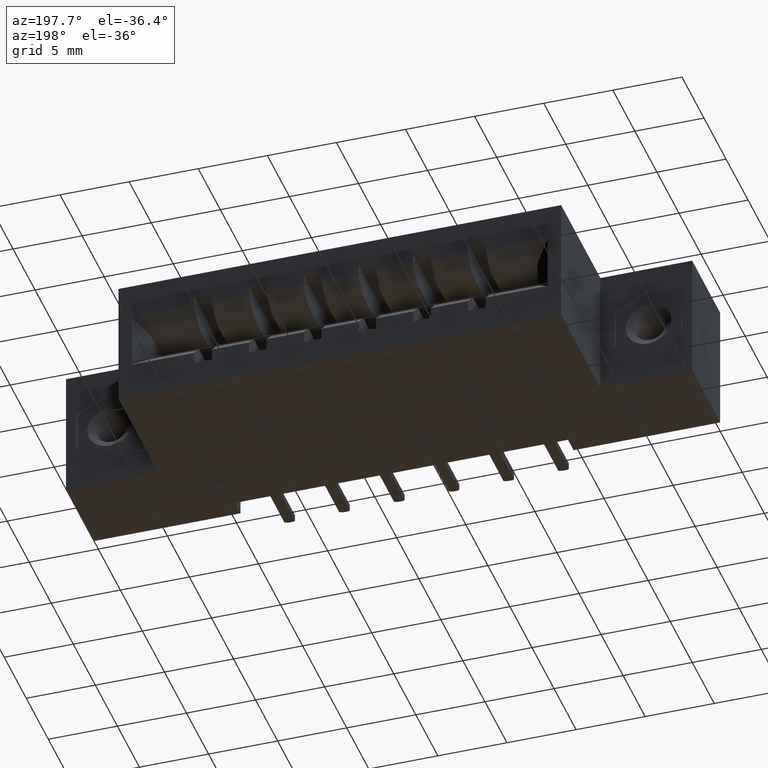
[diagram: clean part render]
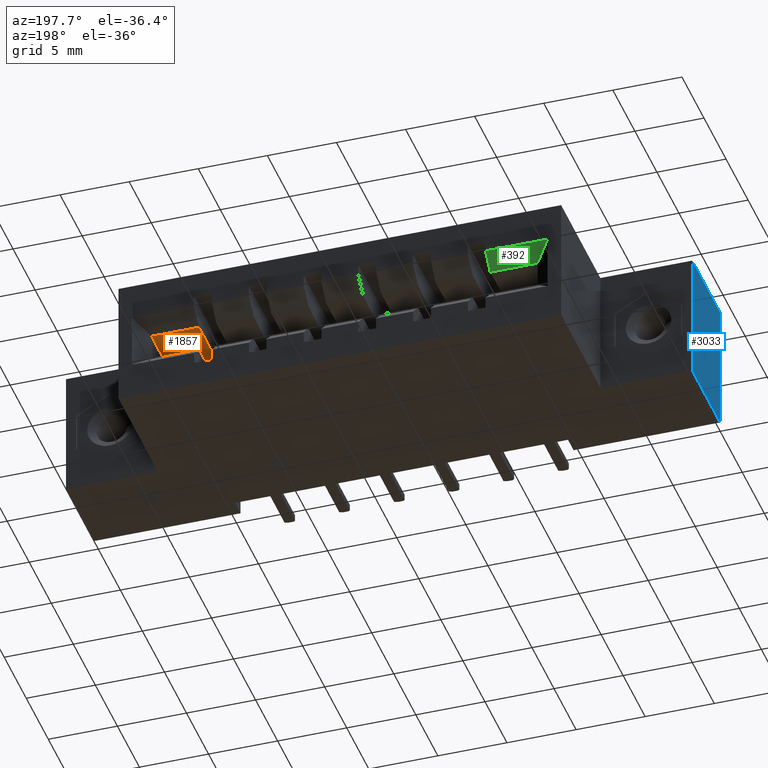
[diagram: same view with three faces highlighted in distinct colors, each labeled with its STEP entity id]
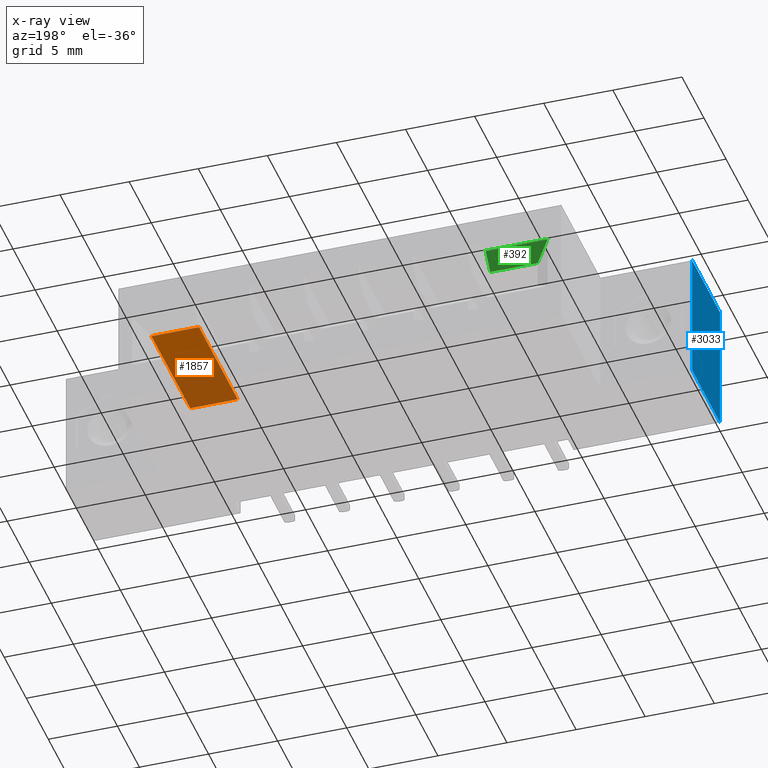
[diagram: x-ray of the same camera — body ghosted, the three highlighted faces saturated]
A machine part, auxiliary view with three faces highlighted in distinct colors.
The next image is the same camera in x-ray (body ghosted, the three faces saturated) — at least one of them is partly hidden behind the body in this view.
Their STEP definitions:

[orange] entity #1857 — the highlighted planar face has unit normal (-0, 0, 1).
#377 = EDGE_LOOP ( 'NONE', ( #1292, #8552, #8151, #769 ) ) ;
#670 = DIRECTION ( 'NONE',  ( 1.000000000000000000, 0.0000000000000000000, 1.241749088029209900E-016 ) ) ;
#769 = ORIENTED_EDGE ( 'NONE', *, *, #3857, .F. ) ;
#892 = CARTESIAN_POINT ( 'NONE',  ( 0.3419999999999999200, 0.2119999999999999400, -0.1480000000000003000 ) ) ;
#1083 = LINE ( 'NONE', #892, #4858 ) ;
#1210 = LINE ( 'NONE', #6230, #4744 ) ;
#1292 = ORIENTED_EDGE ( 'NONE', *, *, #1594, .T. ) ;
#1507 = VERTEX_POINT ( 'NONE', #9075 ) ;
#1585 = CARTESIAN_POINT ( 'NONE',  ( 1.442000000000000600, 0.5579999999999999400, -0.1480000000000001600 ) ) ;
#1594 = EDGE_CURVE ( 'NONE', #6594, #1507, #7802, .T. ) ;
#1857 = ADVANCED_FACE ( 'NONE', ( #5703 ), #8212, .F. ) ;
#1911 = VECTOR ( 'NONE', #3814, 39.37007874015748100 ) ;
#2102 = AXIS2_PLACEMENT_3D ( 'NONE', #8538, #8053, #8027 ) ;
#3676 = CARTESIAN_POINT ( 'NONE',  ( 1.306999999999999700, 0.5999999999999996400, -0.1480000000000002700 ) ) ;
#3767 = VERTEX_POINT ( 'NONE', #1585 ) ;
#3814 = DIRECTION ( 'NONE',  ( -0.0000000000000000000, 1.000000000000000000, -0.0000000000000000000 ) ) ;
#3848 = DIRECTION ( 'NONE',  ( -0.0000000000000000000, 1.000000000000000000, -8.801056680619408300E-016 ) ) ;
#3857 = EDGE_CURVE ( 'NONE', #6594, #9314, #1083, .T. ) ;
#4018 = EDGE_CURVE ( 'NONE', #9314, #3767, #4148, .T. ) ;
#4148 = LINE ( 'NONE', #8982, #1911 ) ;
#4744 = VECTOR ( 'NONE', #7728, 39.37007874015748100 ) ;
#4858 = VECTOR ( 'NONE', #670, 39.37007874015748100 ) ;
#5703 = FACE_OUTER_BOUND ( 'NONE', #377, .T. ) ;
#6151 = CARTESIAN_POINT ( 'NONE',  ( 1.306999999999999700, 0.2119999999999999400, -0.1480000000000001600 ) ) ;
#6230 = CARTESIAN_POINT ( 'NONE',  ( 0.3419999999999999200, 0.5579999999999999400, -0.1480000000000003000 ) ) ;
#6594 = VERTEX_POINT ( 'NONE', #6151 ) ;
#7567 = VECTOR ( 'NONE', #3848, 39.37007874015748100 ) ;
#7728 = DIRECTION ( 'NONE',  ( 1.000000000000000000, 0.0000000000000000000, 1.241749088029209900E-016 ) ) ;
#7802 = LINE ( 'NONE', #3676, #7567 ) ;
#8027 = DIRECTION ( 'NONE',  ( 1.000000000000000000, 0.0000000000000000000, 1.241749088029209900E-016 ) ) ;
#8053 = DIRECTION ( 'NONE',  ( -1.241749088029209900E-016, 0.0000000000000000000, 1.000000000000000000 ) ) ;
#8151 = ORIENTED_EDGE ( 'NONE', *, *, #4018, .F. ) ;
#8212 = PLANE ( 'NONE',  #2102 ) ;
#8538 = CARTESIAN_POINT ( 'NONE',  ( 0.3419999999999999200, 0.2119999999999999400, -0.1480000000000003000 ) ) ;
#8544 = CARTESIAN_POINT ( 'NONE',  ( 1.442000000000000600, 0.2119999999999999400, -0.1480000000000001600 ) ) ;
#8552 = ORIENTED_EDGE ( 'NONE', *, *, #9223, .T. ) ;
#8982 = CARTESIAN_POINT ( 'NONE',  ( 1.442000000000000600, 0.2119999999999999400, -0.1480000000000001600 ) ) ;
#9075 = CARTESIAN_POINT ( 'NONE',  ( 1.306999999999999700, 0.5579999999999999400, -0.1480000000000002400 ) ) ;
#9223 = EDGE_CURVE ( 'NONE', #1507, #3767, #1210, .T. ) ;
#9314 = VERTEX_POINT ( 'NONE', #8544 ) ;

[blue] entity #3033 — the highlighted planar face has unit normal (1, 0, 0).
#284 = CARTESIAN_POINT ( 'NONE',  ( 0.0000000000000000000, 0.5999999999999999800, -0.3700000000000000000 ) ) ;
#320 = EDGE_CURVE ( 'NONE', #1428, #4982, #6645, .T. ) ;
#1215 = CARTESIAN_POINT ( 'NONE',  ( 0.0000000000000000000, 0.5999999999999999800, 0.0000000000000000000 ) ) ;
#1351 = AXIS2_PLACEMENT_3D ( 'NONE', #8933, #8897, #8885 ) ;
#1428 = VERTEX_POINT ( 'NONE', #9389 ) ;
#1506 = DIRECTION ( 'NONE',  ( -0.0000000000000000000, -1.000000000000000000, -0.0000000000000000000 ) ) ;
#1779 = LINE ( 'NONE', #8340, #5320 ) ;
#1898 = EDGE_LOOP ( 'NONE', ( #6894, #9090, #7848, #8609 ) ) ;
#2142 = CARTESIAN_POINT ( 'NONE',  ( 0.0000000000000000000, 0.2500000000000000000, -0.3700000000000000000 ) ) ;
#2834 = EDGE_CURVE ( 'NONE', #4471, #3549, #8674, .T. ) ;
#3033 = ADVANCED_FACE ( 'NONE', ( #8560 ), #8995, .F. ) ;
#3194 = LINE ( 'NONE', #2142, #9336 ) ;
#3549 = VERTEX_POINT ( 'NONE', #3955 ) ;
#3955 = CARTESIAN_POINT ( 'NONE',  ( 0.0000000000000000000, 0.0000000000000000000, 0.0000000000000000000 ) ) ;
#4471 = VERTEX_POINT ( 'NONE', #6601 ) ;
#4717 = EDGE_CURVE ( 'NONE', #4982, #3549, #1779, .T. ) ;
#4938 = CARTESIAN_POINT ( 'NONE',  ( 0.0000000000000000000, 0.0000000000000000000, -0.3700000000000000000 ) ) ;
#4982 = VERTEX_POINT ( 'NONE', #4938 ) ;
#5177 = EDGE_CURVE ( 'NONE', #1428, #4471, #3194, .T. ) ;
#5320 = VECTOR ( 'NONE', #9065, 39.37007874015748100 ) ;
#6601 = CARTESIAN_POINT ( 'NONE',  ( 0.0000000000000000000, 0.2500000000000000000, 0.0000000000000000000 ) ) ;
#6626 = DIRECTION ( 'NONE',  ( 0.0000000000000000000, 0.0000000000000000000, 1.000000000000000000 ) ) ;
#6645 = LINE ( 'NONE', #284, #8370 ) ;
#6894 = ORIENTED_EDGE ( 'NONE', *, *, #5177, .F. ) ;
#6949 = VECTOR ( 'NONE', #1506, 39.37007874015748100 ) ;
#7235 = DIRECTION ( 'NONE',  ( -0.0000000000000000000, -1.000000000000000000, -0.0000000000000000000 ) ) ;
#7848 = ORIENTED_EDGE ( 'NONE', *, *, #4717, .T. ) ;
#8340 = CARTESIAN_POINT ( 'NONE',  ( 0.0000000000000000000, 0.0000000000000000000, 0.0000000000000000000 ) ) ;
#8370 = VECTOR ( 'NONE', #7235, 39.37007874015748100 ) ;
#8560 = FACE_OUTER_BOUND ( 'NONE', #1898, .T. ) ;
#8609 = ORIENTED_EDGE ( 'NONE', *, *, #2834, .F. ) ;
#8674 = LINE ( 'NONE', #1215, #6949 ) ;
#8885 = DIRECTION ( 'NONE',  ( 0.0000000000000000000, 0.0000000000000000000, -1.000000000000000000 ) ) ;
#8897 = DIRECTION ( 'NONE',  ( 1.000000000000000000, -0.0000000000000000000, 0.0000000000000000000 ) ) ;
#8933 = CARTESIAN_POINT ( 'NONE',  ( 0.0000000000000000000, 0.5999999999999999800, 0.0000000000000000000 ) ) ;
#8995 = PLANE ( 'NONE',  #1351 ) ;
#9065 = DIRECTION ( 'NONE',  ( -0.0000000000000000000, -0.0000000000000000000, 1.000000000000000000 ) ) ;
#9090 = ORIENTED_EDGE ( 'NONE', *, *, #320, .T. ) ;
#9336 = VECTOR ( 'NONE', #6626, 39.37007874015748100 ) ;
#9389 = CARTESIAN_POINT ( 'NONE',  ( 0.0000000000000000000, 0.2500000000000000000, -0.3700000000000000000 ) ) ;

[green] entity #392 — the highlighted planar face has unit normal (-0, -0.7071, 0.7071).
#53 = CARTESIAN_POINT ( 'NONE',  ( 0.4769999999999999200, 0.5579999999999999400, -0.1480000000000003000 ) ) ;
#386 = LINE ( 'NONE', #7958, #8090 ) ;
#392 = ADVANCED_FACE ( 'NONE', ( #1723 ), #777, .F. ) ;
#652 = CARTESIAN_POINT ( 'NONE',  ( 0.4769999999999999200, 0.5580000000000000500, -0.1480000000000002400 ) ) ;
#777 = PLANE ( 'NONE',  #8322 ) ;
#1591 = DIRECTION ( 'NONE',  ( -8.780492006776654700E-017, -0.7071067811865474600, 0.7071067811865475700 ) ) ;
#1723 = FACE_OUTER_BOUND ( 'NONE', #6952, .T. ) ;
#2011 = DIRECTION ( 'NONE',  ( -0.5773502691896258400, 0.5773502691896258400, 0.5773502691896256200 ) ) ;
#2097 = VECTOR ( 'NONE', #2474, 39.37007874015748100 ) ;
#2140 = CARTESIAN_POINT ( 'NONE',  ( -3.278217592397109900E-017, 0.5999999999999999800, -0.1060000000000003600 ) ) ;
#2350 = LINE ( 'NONE', #53, #2097 ) ;
#2474 = DIRECTION ( 'NONE',  ( -0.0000000000000000000, 0.7071067811865475700, 0.7071067811865474600 ) ) ;
#2480 = ORIENTED_EDGE ( 'NONE', *, *, #4725, .F. ) ;
#2554 = CARTESIAN_POINT ( 'NONE',  ( 0.4769999999999999200, 0.5999999999999997600, -0.1060000000000005100 ) ) ;
#2726 = CARTESIAN_POINT ( 'NONE',  ( 0.3419999999999999200, 0.5579999999999999400, -0.1480000000000003000 ) ) ;
#2853 = VERTEX_POINT ( 'NONE', #652 ) ;
#2863 = ORIENTED_EDGE ( 'NONE', *, *, #4408, .T. ) ;
#3159 = CARTESIAN_POINT ( 'NONE',  ( 0.3419999999999999200, 0.5579999999999999400, -0.1480000000000003000 ) ) ;
#3412 = VERTEX_POINT ( 'NONE', #5175 ) ;
#3529 = CARTESIAN_POINT ( 'NONE',  ( 0.3419999999999999200, 0.5579999999999999400, -0.1480000000000003000 ) ) ;
#4236 = ORIENTED_EDGE ( 'NONE', *, *, #7245, .F. ) ;
#4408 = EDGE_CURVE ( 'NONE', #9453, #3412, #386, .T. ) ;
#4725 = EDGE_CURVE ( 'NONE', #9453, #2853, #8990, .T. ) ;
#5175 = CARTESIAN_POINT ( 'NONE',  ( 0.2999999999999999300, 0.5999999999999999800, -0.1060000000000003200 ) ) ;
#6621 = DIRECTION ( 'NONE',  ( -1.000000000000000000, 0.0000000000000000000, -1.241749088029209900E-016 ) ) ;
#6891 = EDGE_CURVE ( 'NONE', #2853, #8197, #2350, .T. ) ;
#6952 = EDGE_LOOP ( 'NONE', ( #9361, #2480, #2863, #4236 ) ) ;
#7036 = VECTOR ( 'NONE', #8365, 39.37007874015748100 ) ;
#7245 = EDGE_CURVE ( 'NONE', #8197, #3412, #7337, .T. ) ;
#7337 = LINE ( 'NONE', #2140, #9283 ) ;
#7605 = DIRECTION ( 'NONE',  ( 0.0000000000000000000, -0.7071067811865475700, -0.7071067811865474600 ) ) ;
#7958 = CARTESIAN_POINT ( 'NONE',  ( 0.3419999999999999200, 0.5579999999999999400, -0.1480000000000003000 ) ) ;
#8090 = VECTOR ( 'NONE', #2011, 39.37007874015748100 ) ;
#8197 = VERTEX_POINT ( 'NONE', #2554 ) ;
#8322 = AXIS2_PLACEMENT_3D ( 'NONE', #3529, #1591, #7605 ) ;
#8365 = DIRECTION ( 'NONE',  ( 1.000000000000000000, 0.0000000000000000000, 1.241749088029209900E-016 ) ) ;
#8990 = LINE ( 'NONE', #3159, #7036 ) ;
#9283 = VECTOR ( 'NONE', #6621, 39.37007874015748100 ) ;
#9361 = ORIENTED_EDGE ( 'NONE', *, *, #6891, .F. ) ;
#9453 = VERTEX_POINT ( 'NONE', #2726 ) ;